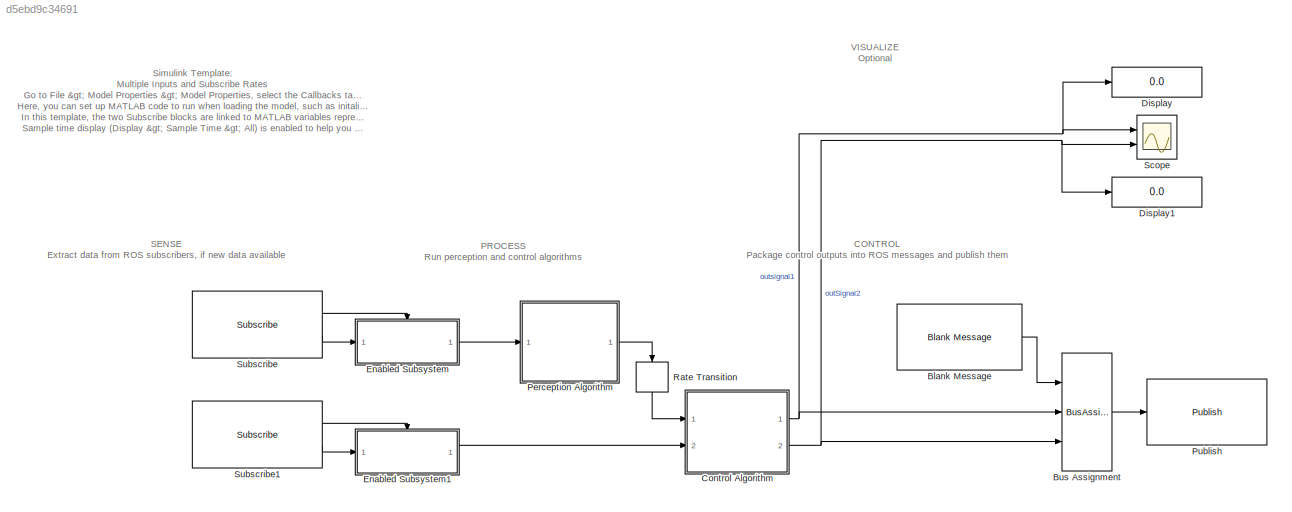
MODEL slx_d5ebd9c34691
KIND model
CONFIG AbsTol = auto
CONFIG EnableMultiTasking = off
CONFIG FixedStep = auto
CONFIG MaxStep = auto
CONFIG MinStep = auto
CONFIG PreLoadFcn = % ROS setup\nrosshutdown;\nipAddr = '';\nrosinit(ipAddr)\n\n% Sample times\nsampleTimeSlow = 1;\nsampleTimeFast = 0.2;\n\n% Control parameters\nctrlParam1 = 2;\nctrlParam2 = 3.5;
CONFIG RelTol = 1e-3
CONFIG SampleTimeConstraint = Unconstrained
CONFIG Solver = VariableStepAuto
CONFIG SolverName = VariableStepAuto
CONFIG StartTime = 0.0
CONFIG StopTime = inf
BLOCK [Reference] Blank Message  REF=robotlib/Blank Message
  Ports = [0, 1]
  SourceBlock = robotlib/Blank Message
  SourceLibraryInfo = This block requires Robotics System Toolbox
  SourceProductBaseCode = RO
  SourceProductName = Robotics System Toolbox
  SourceType = ROS Blank Message
BLOCK [BusAssignment] Bus Assignment
  AssignedSignals = X,Y
  Ports = [3, 1]
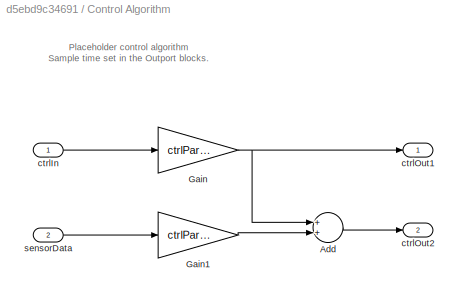
BLOCK [SubSystem] Control Algorithm
  Ports = [2, 2]
  RequestExecContextInheritance = off
  Variant = off
BLOCK [Sum] Control Algorithm/Add
  InputSameDT = off
  OutDataTypeStr = Inherit: Inherit via internal rule
  Ports = [2, 1]
  SaturateOnIntegerOverflow = off
BLOCK [Gain] Control Algorithm/Gain
  Gain = ctrlParam1
  OutDataTypeStr = Inherit: Inherit via internal rule
  ParamDataTypeStr = Inherit: Inherit via internal rule
  SaturateOnIntegerOverflow = off
BLOCK [Gain] Control Algorithm/Gain1
  Gain = ctrlParam2
  OutDataTypeStr = Inherit: Inherit via internal rule
  ParamDataTypeStr = Inherit: Inherit via internal rule
  SaturateOnIntegerOverflow = off
BLOCK [Inport] Control Algorithm/ctrlIn
  IconDisplay = Port number
BLOCK [Outport] Control Algorithm/ctrlOut1
  AttributesFormatString = Sample time: %<SampleTime>
  IconDisplay = Port number
  SampleTime = sampleTimeFast
BLOCK [Outport] Control Algorithm/ctrlOut2
  AttributesFormatString = Sample time: %<SampleTime>
  IconDisplay = Port number
  Port = 2
  SampleTime = sampleTimeFast
BLOCK [Inport] Control Algorithm/sensorData
  IconDisplay = Port number
  Port = 2
BLOCK [Display] Display
  Decimation = 1
  Ports = [1]
BLOCK [Display] Display1
  Decimation = 1
  Ports = [1]
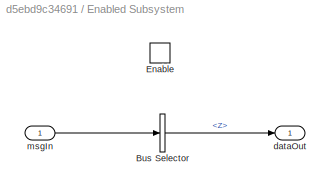
BLOCK [SubSystem] Enabled Subsystem
  Ports = [1, 1, 1]
  RequestExecContextInheritance = off
  TreatAsAtomicUnit = on
  Variant = off
BLOCK [BusSelector] Enabled Subsystem/Bus Selector
  OutputAsBus = off
  OutputSignals = Z
  Ports = [1, 1]
BLOCK [EnablePort] Enabled Subsystem/Enable
  Ports = []
BLOCK [Outport] Enabled Subsystem/dataOut
  IconDisplay = Port number
BLOCK [Inport] Enabled Subsystem/msgIn
  IconDisplay = Port number
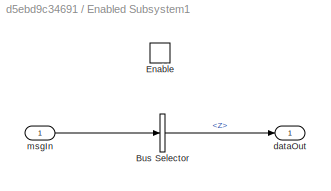
BLOCK [SubSystem] Enabled Subsystem1
  Ports = [1, 1, 1]
  RequestExecContextInheritance = off
  TreatAsAtomicUnit = on
  Variant = off
BLOCK [BusSelector] Enabled Subsystem1/Bus Selector
  OutputAsBus = off
  OutputSignals = Z
  Ports = [1, 1]
BLOCK [EnablePort] Enabled Subsystem1/Enable
  Ports = []
BLOCK [Outport] Enabled Subsystem1/dataOut
  IconDisplay = Port number
BLOCK [Inport] Enabled Subsystem1/msgIn
  IconDisplay = Port number
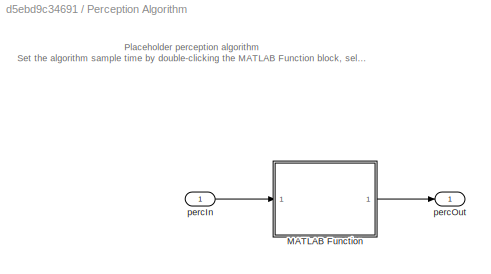
BLOCK [SubSystem] Perception Algorithm
  Ports = [1, 1]
  RequestExecContextInheritance = off
  Variant = off
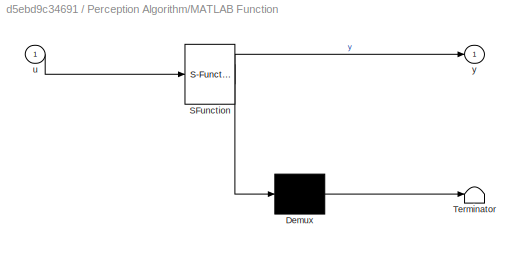
BLOCK [SubSystem] Perception Algorithm/MATLAB Function
  ErrorFcn = Stateflow.Translate.translate
  PermitHierarchicalResolution = ExplicitOnly
  Ports = [1, 1]
  RequestExecContextInheritance = off
  SFBlockType = MATLAB Function
  TreatAsAtomicUnit = on
  Variant = off
BLOCK [Demux] Perception Algorithm/MATLAB Function/ Demux 
  Outputs = 1
  Ports = [1, 1]
BLOCK [S-Function] Perception Algorithm/MATLAB Function/ SFunction 
  EnableBusSupport = on
  FunctionName = sf_sfun
  PortCounts = [1 2]
  Ports = [1, 2]
  SFcnIsStateOwnerBlock = off
  SFunctionDeploymentMode = off
  Tag = Stateflow S-Function multirateTemplate 2
BLOCK [Terminator] Perception Algorithm/MATLAB Function/ Terminator 
BLOCK [Inport] Perception Algorithm/MATLAB Function/u
  IconDisplay = Port number
BLOCK [Outport] Perception Algorithm/MATLAB Function/y
  IconDisplay = Port number
BLOCK [Inport] Perception Algorithm/percIn
  IconDisplay = Port number
BLOCK [Outport] Perception Algorithm/percOut
  IconDisplay = Port number
BLOCK [Reference] Publish  REF=robotlib/Publish
  Ports = [1]
  SourceBlock = robotlib/Publish
  SourceLibraryInfo = This block requires Robotics System Toolbox
  SourceProductBaseCode = RO
  SourceProductName = Robotics System Toolbox
  SourceType = ROS Publish
BLOCK [RateTransition] Rate Transition
BLOCK [Scope] Scope
  NumInputPorts = 2
  Ports = [2]
  ScopeSpecificationString = Simulink.scopes.TimeScopeBlockCfg('CurrentConfiguration', extmgr.ConfigurationSet(extmgr.Configuration('Core','General UI',true),extmgr.Configuration('Core','Source UI',true),extmgr.Configuration('Sources','WiredSimulink',true),extmgr.Configuration('Visuals','Time Domain',true),extmgr.Configuration('Tools','Plot Navigation',true),extmgr.Configuration('Tools','Measurements',true)),'Version','2017b'...<+1ch>
BLOCK [Reference] Subscribe  REF=robotlib/Subscribe
  Ports = [0, 2]
  SourceBlock = robotlib/Subscribe
  SourceLibraryInfo = This block requires Robotics System Toolbox
  SourceProductBaseCode = RO
  SourceProductName = Robotics System Toolbox
  SourceType = ROS Subscribe
BLOCK [Reference] Subscribe1  REF=robotlib/Subscribe
  Ports = [0, 2]
  SourceBlock = robotlib/Subscribe
  SourceLibraryInfo = This block requires Robotics System Toolbox
  SourceProductBaseCode = RO
  SourceProductName = Robotics System Toolbox
  SourceType = ROS Subscribe
ANNOTATION (root): Simulink Template: Multiple Inputs and Subscribe Rates Go to File > Model Properties > Model Properties , select the Callbacks tab, and go to PreLoadFcn . Here, you can set up MATLAB code to run when loading the model, such as initalizing ROS and loading parameters. In this template, the two Subscribe blocks are linked to MATLAB variables representing different sample times. Sample time display ( ...<+116ch>
ANNOTATION (root): CONTROL Package control outputs into ROS messages and publish them
ANNOTATION (root): PROCESS Run perception and control algorithms
ANNOTATION (root): SENSE Extract data from ROS subscribers, if new data available
ANNOTATION (root): VISUALIZE Optional
ANNOTATION Control Algorithm: Placeholder control algorithm Sample time set in the Outport blocks.
ANNOTATION Perception Algorithm: Placeholder perception algorithm Set the algorithm sample time by double-clicking the MATLAB Function block, selecting Edit Data from the toolstrip, and using the sample time options in the dialog that opens.
LINE Blank Message:1 -> Bus Assignment:1
LINE Bus Assignment:1 -> Publish:1
LINE Control Algorithm/Add:1 -> Control Algorithm/ctrlOut2:1
LINE Control Algorithm/Gain1:1 -> Control Algorithm/Add:2
NET Control Algorithm/Gain:1 -> Control Algorithm/Add:1, Control Algorithm/ctrlOut1:1
LINE Control Algorithm/ctrlIn:1 -> Control Algorithm/Gain:1
LINE Control Algorithm/sensorData:1 -> Control Algorithm/Gain1:1
NET Control Algorithm:1 -> Bus Assignment:2, Display:1, Scope:1
NET Control Algorithm:2 -> Bus Assignment:3, Display1:1, Scope:2
LINE Enabled Subsystem/Bus Selector:1 -> Enabled Subsystem/dataOut:1
LINE Enabled Subsystem/msgIn:1 -> Enabled Subsystem/Bus Selector:1
LINE Enabled Subsystem1/Bus Selector:1 -> Enabled Subsystem1/dataOut:1
LINE Enabled Subsystem1/msgIn:1 -> Enabled Subsystem1/Bus Selector:1
LINE Enabled Subsystem1:1 -> Control Algorithm:2
LINE Enabled Subsystem:1 -> Perception Algorithm:1
LINE Perception Algorithm/MATLAB Function:1 -> Perception Algorithm/percOut:1
LINE Perception Algorithm/percIn:1 -> Perception Algorithm/MATLAB Function:1
LINE Perception Algorithm:1 -> Rate Transition:1
LINE Rate Transition:1 -> Control Algorithm:1
LINE Subscribe1:1 -> Enabled Subsystem1:enable
LINE Subscribe1:2 -> Enabled Subsystem1:1
LINE Subscribe:1 -> Enabled Subsystem:enable
LINE Subscribe:2 -> Enabled Subsystem:1
note: NET lines group one-source signal fan-out (src -> all destinations, sorted); 1:1 wires keep LINE
CHART Perception Algorithm/MATLAB Function states=1 transitions=1
  STATE_LABEL 'eML_blk_kernel()'
  STATE_LABEL 'SCRIPT:\nfunction y = myPerceptionFcn(u)\n\ny = 2*u;\n'
